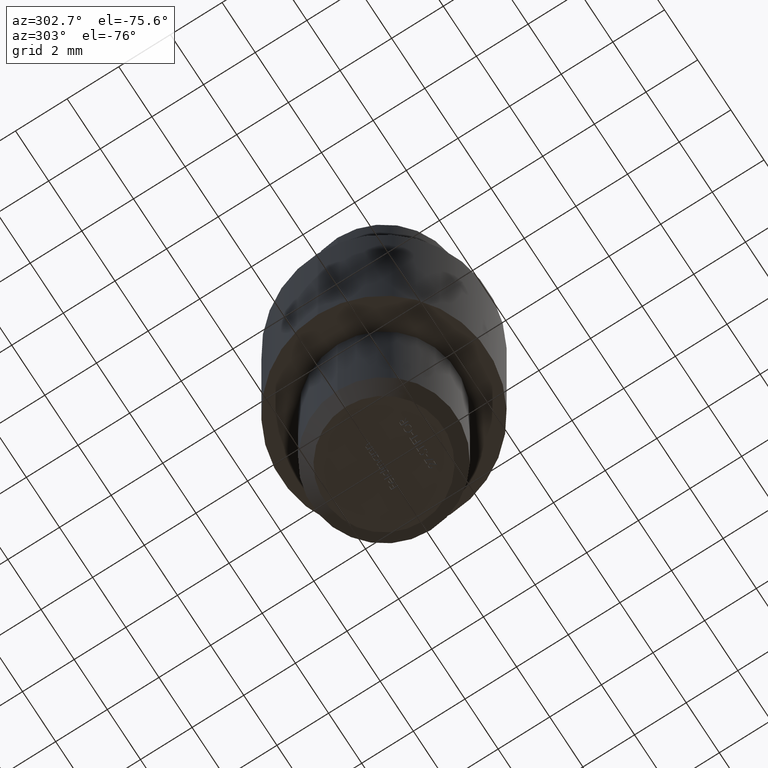
[diagram: clean part render]
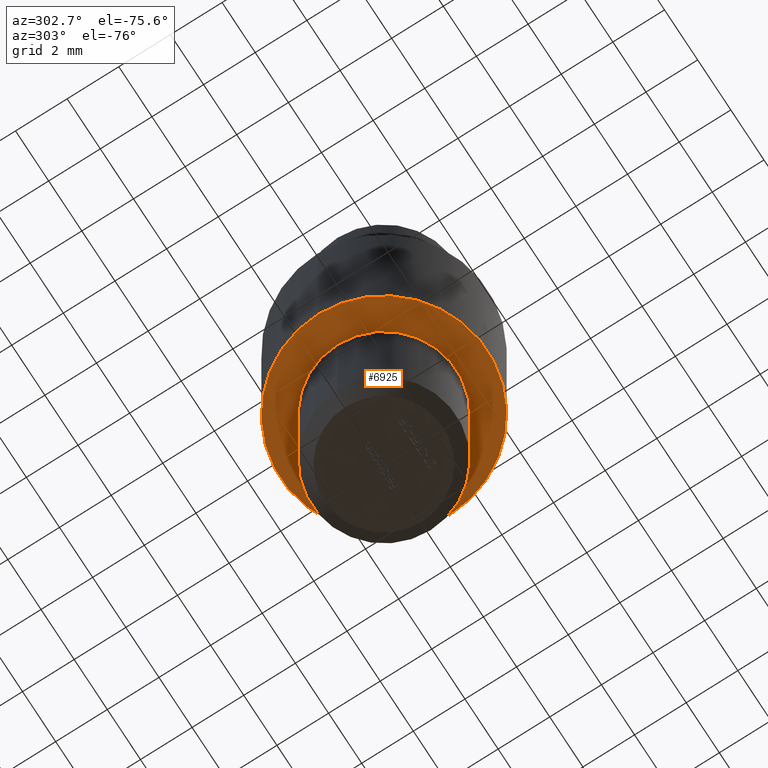
[diagram: same view with one face highlighted and labeled with its STEP entity id]
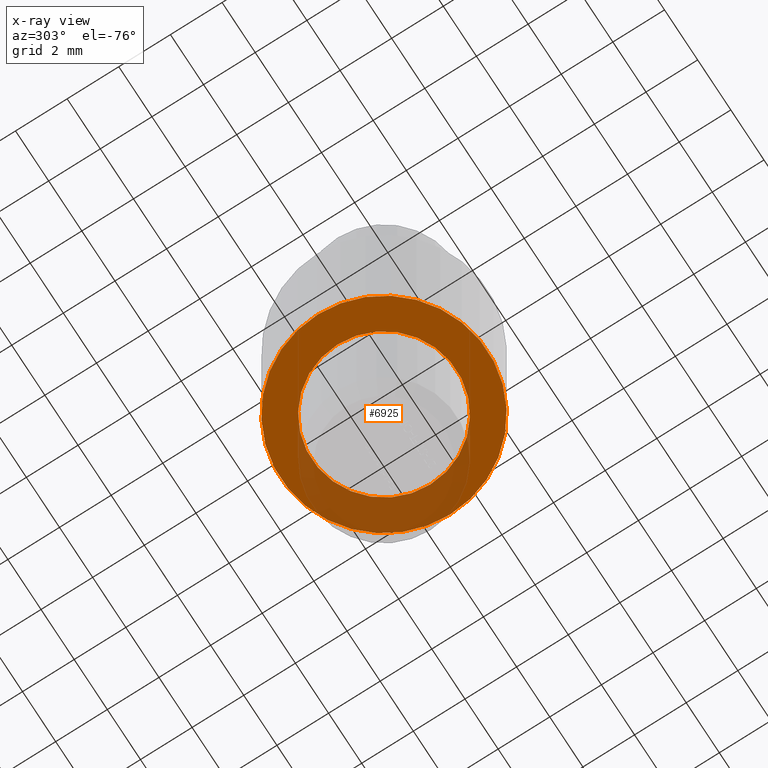
[diagram: x-ray of the same camera — body ghosted, the highlighted face saturated]
A machine part, auxiliary view. The second image highlights one B-rep face of the part: STEP entity #6925.
The next image is the same camera in x-ray: the body ghosted, the highlighted face saturated — about 30% of this face is hidden behind the body in this view.
In plain terms, the highlighted planar face has unit normal (0, 0, 1).
Its self-contained STEP definition (entity closure, byte-faithful):
#253 = CIRCLE ( 'NONE', #10894, 4.000000000000000000 ) ;
#908 = CIRCLE ( 'NONE', #9401, 2.799999999999999800 ) ;
#922 = VERTEX_POINT ( 'NONE', #8464 ) ;
#1154 = DIRECTION ( 'NONE',  ( 0.0000000000000000000, 0.0000000000000000000, 1.000000000000000000 ) ) ;
#1332 = DIRECTION ( 'NONE',  ( 0.0000000000000000000, 0.0000000000000000000, 1.000000000000000000 ) ) ;
#1423 = CARTESIAN_POINT ( 'NONE',  ( 0.0000000000000000000, 0.0000000000000000000, 0.0000000000000000000 ) ) ;
#1675 = DIRECTION ( 'NONE',  ( 1.000000000000000000, 0.0000000000000000000, 0.0000000000000000000 ) ) ;
#1717 = DIRECTION ( 'NONE',  ( 1.000000000000000000, 0.0000000000000000000, 0.0000000000000000000 ) ) ;
#2178 = DIRECTION ( 'NONE',  ( 1.000000000000000000, 0.0000000000000000000, -0.0000000000000000000 ) ) ;
#2709 = VERTEX_POINT ( 'NONE', #7559 ) ;
#2711 = CARTESIAN_POINT ( 'NONE',  ( 2.799999999999999800, 3.429011037612588800E-016, 0.0000000000000000000 ) ) ;
#2815 = VERTEX_POINT ( 'NONE', #2711 ) ;
#3180 = ORIENTED_EDGE ( 'NONE', *, *, #6447, .F. ) ;
#3215 = DIRECTION ( 'NONE',  ( 0.0000000000000000000, 0.0000000000000000000, 1.000000000000000000 ) ) ;
#3391 = DIRECTION ( 'NONE',  ( 0.0000000000000000000, 0.0000000000000000000, 1.000000000000000000 ) ) ;
#3434 = FACE_OUTER_BOUND ( 'NONE', #5139, .T. ) ;
#3838 = AXIS2_PLACEMENT_3D ( 'NONE', #6923, #9748, #1675 ) ;
#3934 = AXIS2_PLACEMENT_3D ( 'NONE', #8797, #3391, #1717 ) ;
#4103 = DIRECTION ( 'NONE',  ( 1.000000000000000000, 0.0000000000000000000, 0.0000000000000000000 ) ) ;
#4159 = EDGE_LOOP ( 'NONE', ( #8731, #8704 ) ) ;
#4220 = ORIENTED_EDGE ( 'NONE', *, *, #11712, .F. ) ;
#4694 = PLANE ( 'NONE',  #8300 ) ;
#5139 = EDGE_LOOP ( 'NONE', ( #3180, #4220 ) ) ;
#5733 = EDGE_CURVE ( 'NONE', #2815, #922, #908, .T. ) ;
#6240 = CARTESIAN_POINT ( 'NONE',  ( 4.000000000000000000, 4.898587196589412800E-016, 0.0000000000000000000 ) ) ;
#6255 = CIRCLE ( 'NONE', #3934, 2.799999999999999800 ) ;
#6447 = EDGE_CURVE ( 'NONE', #2709, #10491, #8100, .T. ) ;
#6923 = CARTESIAN_POINT ( 'NONE',  ( 0.0000000000000000000, 0.0000000000000000000, 0.0000000000000000000 ) ) ;
#6925 = ADVANCED_FACE ( 'NONE', ( #3434, #9395 ), #4694, .F. ) ;
#7552 = CARTESIAN_POINT ( 'NONE',  ( 0.0000000000000000000, 0.0000000000000000000, 0.0000000000000000000 ) ) ;
#7559 = CARTESIAN_POINT ( 'NONE',  ( -4.000000000000000000, 0.0000000000000000000, 0.0000000000000000000 ) ) ;
#7818 = CARTESIAN_POINT ( 'NONE',  ( 0.0000000000000000000, 0.0000000000000000000, 0.0000000000000000000 ) ) ;
#8100 = CIRCLE ( 'NONE', #3838, 4.000000000000000000 ) ;
#8300 = AXIS2_PLACEMENT_3D ( 'NONE', #7552, #1154, #2178 ) ;
#8464 = CARTESIAN_POINT ( 'NONE',  ( -2.799999999999999800, 0.0000000000000000000, 0.0000000000000000000 ) ) ;
#8704 = ORIENTED_EDGE ( 'NONE', *, *, #5733, .T. ) ;
#8731 = ORIENTED_EDGE ( 'NONE', *, *, #9500, .T. ) ;
#8797 = CARTESIAN_POINT ( 'NONE',  ( 0.0000000000000000000, 0.0000000000000000000, 0.0000000000000000000 ) ) ;
#9395 = FACE_BOUND ( 'NONE', #4159, .T. ) ;
#9401 = AXIS2_PLACEMENT_3D ( 'NONE', #1423, #1332, #9565 ) ;
#9500 = EDGE_CURVE ( 'NONE', #922, #2815, #6255, .T. ) ;
#9565 = DIRECTION ( 'NONE',  ( 1.000000000000000000, 0.0000000000000000000, 0.0000000000000000000 ) ) ;
#9748 = DIRECTION ( 'NONE',  ( 0.0000000000000000000, 0.0000000000000000000, 1.000000000000000000 ) ) ;
#10491 = VERTEX_POINT ( 'NONE', #6240 ) ;
#10894 = AXIS2_PLACEMENT_3D ( 'NONE', #7818, #3215, #4103 ) ;
#11712 = EDGE_CURVE ( 'NONE', #10491, #2709, #253, .T. ) ;